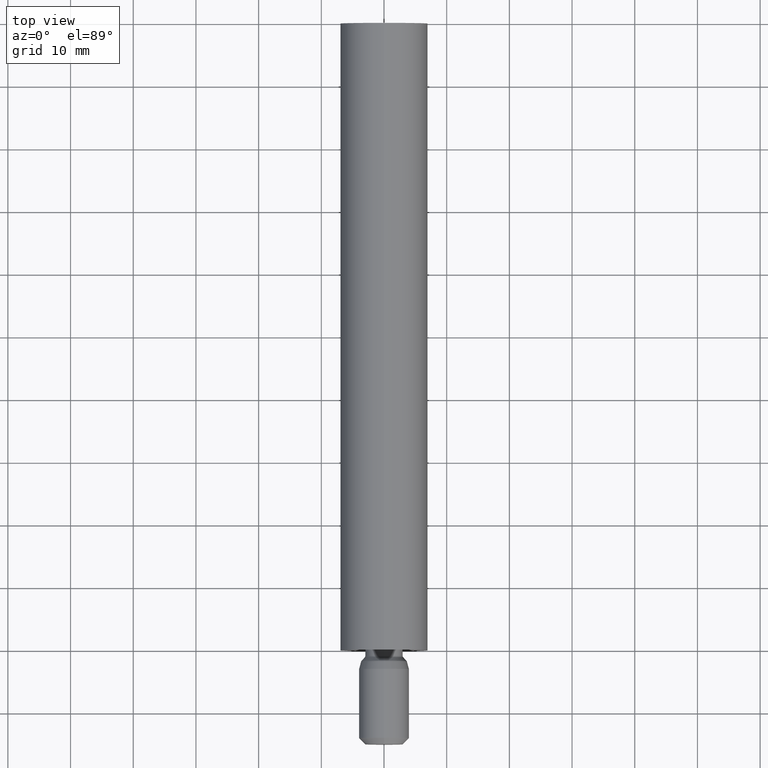
[diagram: clean part render]
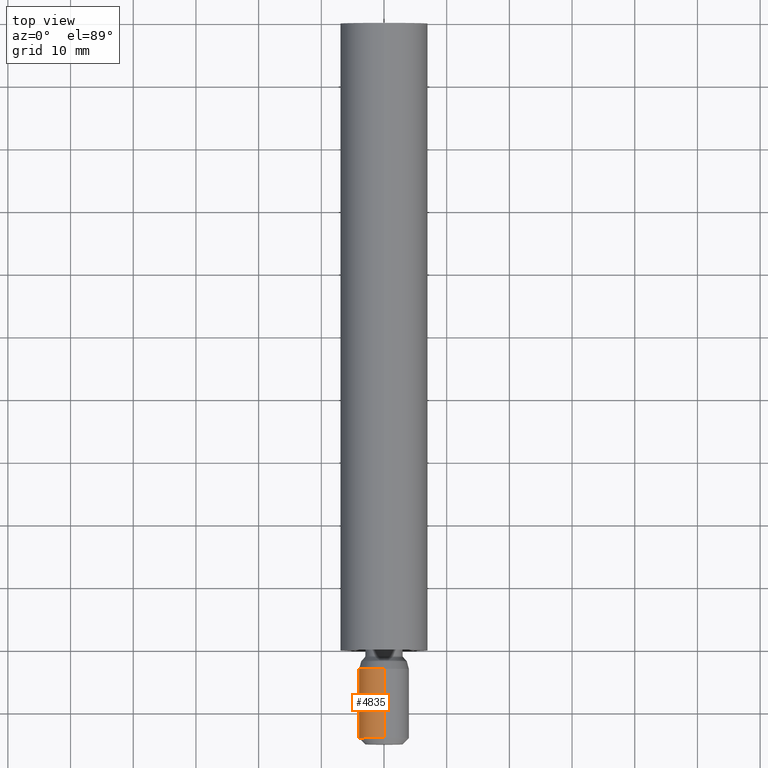
[diagram: same view with one face highlighted and labeled with its STEP entity id]
A machine part, top view. The second image highlights one B-rep face of the part: STEP entity #4835.
In plain terms, the highlighted cylindrical surface (edge-blend (fillet) strip) has radius 4 mm, axis along (-0, -1, -0).
Its self-contained STEP definition (entity closure, byte-faithful):
#476 = VECTOR ( 'NONE', #8195, 1000.000000000000000 ) ;
#606 = DIRECTION ( 'NONE',  ( 0.0000000000000000000, 0.0000000000000000000, -1.000000000000000000 ) ) ;
#751 = CARTESIAN_POINT ( 'NONE',  ( 0.0000000000000000000, 0.0000000000000000000, 0.0000000000000000000 ) ) ;
#1531 = DIRECTION ( 'NONE',  ( -0.0000000000000000000, -1.000000000000000000, -0.0000000000000000000 ) ) ;
#1682 = DIRECTION ( 'NONE',  ( 0.0000000000000000000, 0.0000000000000000000, -1.000000000000000000 ) ) ;
#2993 = DIRECTION ( 'NONE',  ( -0.0000000000000000000, -1.000000000000000000, -0.0000000000000000000 ) ) ;
#2999 = CYLINDRICAL_SURFACE ( 'NONE', #3613, 4.000000000000000000 ) ;
#3613 = AXIS2_PLACEMENT_3D ( 'NONE', #751, #2993, #606 ) ;
#4835 = ADVANCED_FACE ( 'NONE', ( #9459 ), #2999, .T. ) ;
#5060 = VERTEX_POINT ( 'NONE', #9048 ) ;
#5766 = ORIENTED_EDGE ( 'NONE', *, *, #13994, .F. ) ;
#5935 = AXIS2_PLACEMENT_3D ( 'NONE', #14079, #11695, #9443 ) ;
#6421 = CIRCLE ( 'NONE', #8231, 4.000000000000000000 ) ;
#6481 = LINE ( 'NONE', #8413, #476 ) ;
#6639 = ORIENTED_EDGE ( 'NONE', *, *, #13776, .F. ) ;
#6932 = VERTEX_POINT ( 'NONE', #9834 ) ;
#7056 = ORIENTED_EDGE ( 'NONE', *, *, #9065, .T. ) ;
#8119 = ORIENTED_EDGE ( 'NONE', *, *, #13803, .T. ) ;
#8195 = DIRECTION ( 'NONE',  ( -0.0000000000000000000, -1.000000000000000000, -0.0000000000000000000 ) ) ;
#8231 = AXIS2_PLACEMENT_3D ( 'NONE', #13077, #1531, #1682 ) ;
#8408 = CARTESIAN_POINT ( 'NONE',  ( 0.0000000000000000000, 0.0000000000000000000, -4.000000000000000000 ) ) ;
#8413 = CARTESIAN_POINT ( 'NONE',  ( 4.898587196589412800E-016, 0.0000000000000000000, 4.000000000000000000 ) ) ;
#8762 = LINE ( 'NONE', #8408, #14437 ) ;
#9048 = CARTESIAN_POINT ( 'NONE',  ( 0.0000000000000000000, -3.000000000000000000, -4.000000000000000000 ) ) ;
#9065 = EDGE_CURVE ( 'NONE', #5060, #6932, #8762, .T. ) ;
#9181 = CIRCLE ( 'NONE', #5935, 4.000000000000000000 ) ;
#9443 = DIRECTION ( 'NONE',  ( 0.0000000000000000000, 0.0000000000000000000, -1.000000000000000000 ) ) ;
#9459 = FACE_OUTER_BOUND ( 'NONE', #11668, .T. ) ;
#9834 = CARTESIAN_POINT ( 'NONE',  ( 4.898587196589413800E-016, -13.99999999999999800, -4.000000000000000000 ) ) ;
#10458 = VERTEX_POINT ( 'NONE', #12943 ) ;
#11668 = EDGE_LOOP ( 'NONE', ( #6639, #8119, #7056, #5766 ) ) ;
#11695 = DIRECTION ( 'NONE',  ( -0.0000000000000000000, -1.000000000000000000, -0.0000000000000000000 ) ) ;
#12943 = CARTESIAN_POINT ( 'NONE',  ( 4.898587196589412800E-016, -3.000000000000000000, 4.000000000000000000 ) ) ;
#13077 = CARTESIAN_POINT ( 'NONE',  ( 0.0000000000000000000, -13.99999999999999800, 0.0000000000000000000 ) ) ;
#13143 = DIRECTION ( 'NONE',  ( -0.0000000000000000000, -1.000000000000000000, -0.0000000000000000000 ) ) ;
#13776 = EDGE_CURVE ( 'NONE', #10458, #14571, #6481, .T. ) ;
#13803 = EDGE_CURVE ( 'NONE', #10458, #5060, #9181, .T. ) ;
#13994 = EDGE_CURVE ( 'NONE', #14571, #6932, #6421, .T. ) ;
#14079 = CARTESIAN_POINT ( 'NONE',  ( 0.0000000000000000000, -3.000000000000000000, 0.0000000000000000000 ) ) ;
#14437 = VECTOR ( 'NONE', #13143, 1000.000000000000000 ) ;
#14562 = CARTESIAN_POINT ( 'NONE',  ( 0.0000000000000000000, -13.99999999999999800, 4.000000000000000000 ) ) ;
#14571 = VERTEX_POINT ( 'NONE', #14562 ) ;